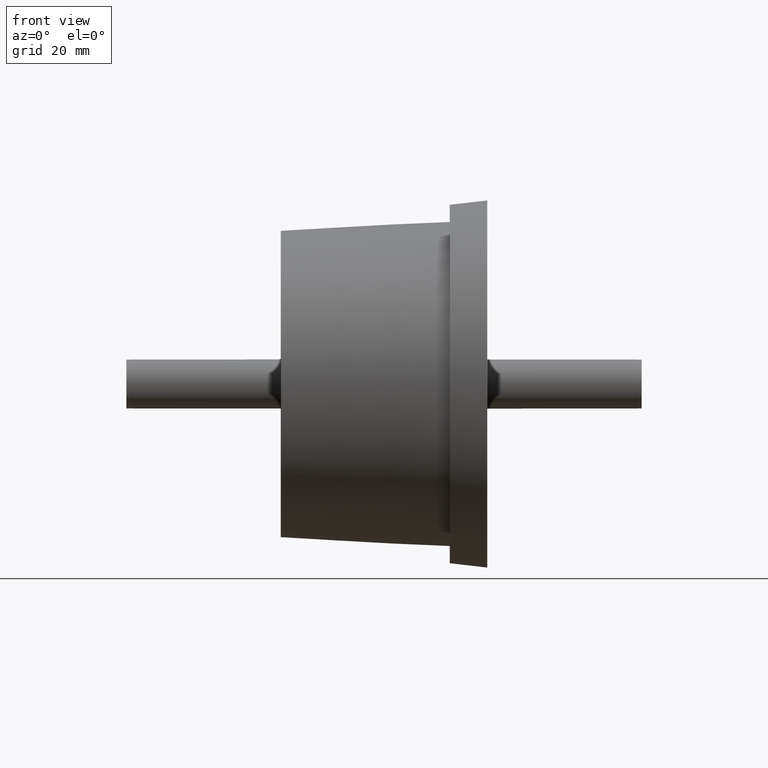
[diagram: clean part render]
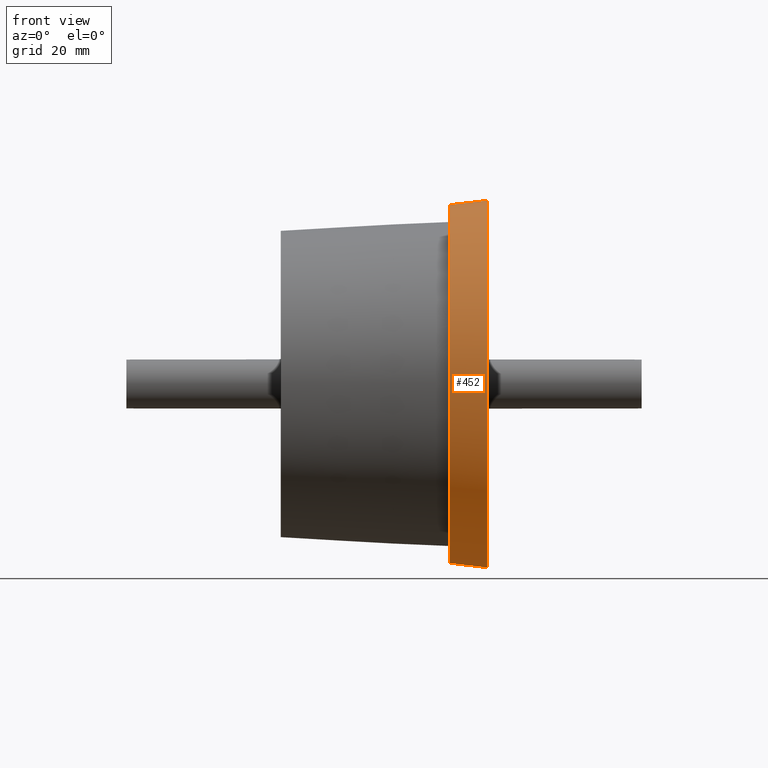
[diagram: same view with one face highlighted and labeled with its STEP entity id]
A machine part, front view. The second image highlights one B-rep face of the part: STEP entity #452.
In plain terms, the highlighted conical surface has half-angle 6.34 deg.
Its self-contained STEP definition (entity closure, byte-faithful):
#16=CONICAL_SURFACE('',#533,43.5,6.34019174590998);
#74=FACE_BOUND('',#191,.T.);
#113=FACE_OUTER_BOUND('',#190,.T.);
#190=EDGE_LOOP('',(#390));
#191=EDGE_LOOP('',(#391));
#217=CIRCLE('',#493,44.);
#235=CIRCLE('',#532,43.);
#257=VERTEX_POINT('',#758);
#275=VERTEX_POINT('',#815);
#297=EDGE_CURVE('',#257,#257,#217,.T.);
#315=EDGE_CURVE('',#275,#275,#235,.T.);
#390=ORIENTED_EDGE('',*,*,#315,.T.);
#391=ORIENTED_EDGE('',*,*,#297,.F.);
#452=ADVANCED_FACE('',(#113,#74),#16,.T.);
#493=AXIS2_PLACEMENT_3D('',#759,#610,#611);
#532=AXIS2_PLACEMENT_3D('',#816,#688,#689);
#533=AXIS2_PLACEMENT_3D('',#817,#690,#691);
#610=DIRECTION('center_axis',(1.,1.83697019872103E-16,0.));
#611=DIRECTION('ref_axis',(0.,0.,-1.));
#688=DIRECTION('center_axis',(1.,1.83697019872103E-16,0.));
#689=DIRECTION('ref_axis',(0.,0.,-1.));
#690=DIRECTION('center_axis',(1.,1.83697019872103E-16,0.));
#691=DIRECTION('ref_axis',(0.,1.,0.));
#758=CARTESIAN_POINT('',(24.75,44.,0.));
#759=CARTESIAN_POINT('Origin',(24.75,1.58897922189369E-14,0.));
#815=CARTESIAN_POINT('',(15.75,43.,0.));
#816=CARTESIAN_POINT('Origin',(15.75,1.4236519040088E-14,0.));
#817=CARTESIAN_POINT('Origin',(20.25,1.50631556295124E-14,0.));